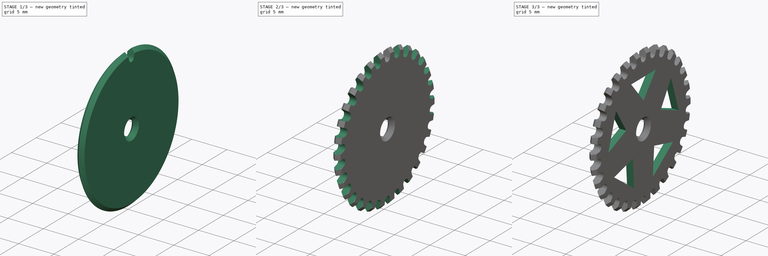
[diagram: build sequence overview — one tinted view per stage of 3, left to right]
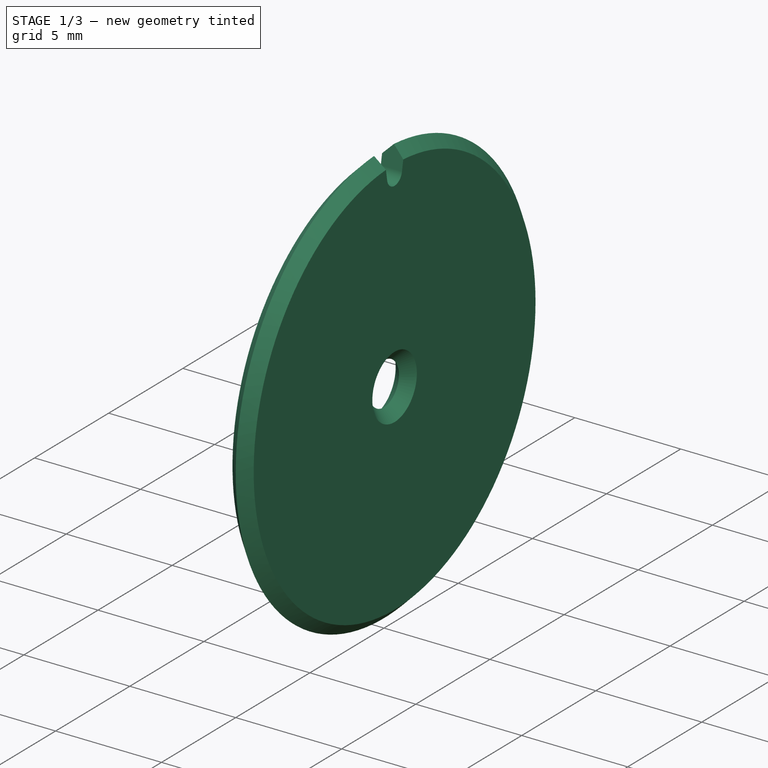
[diagram: stage 1 of 3 — iso view after this stage's code; geometry added in this stage tinted green]
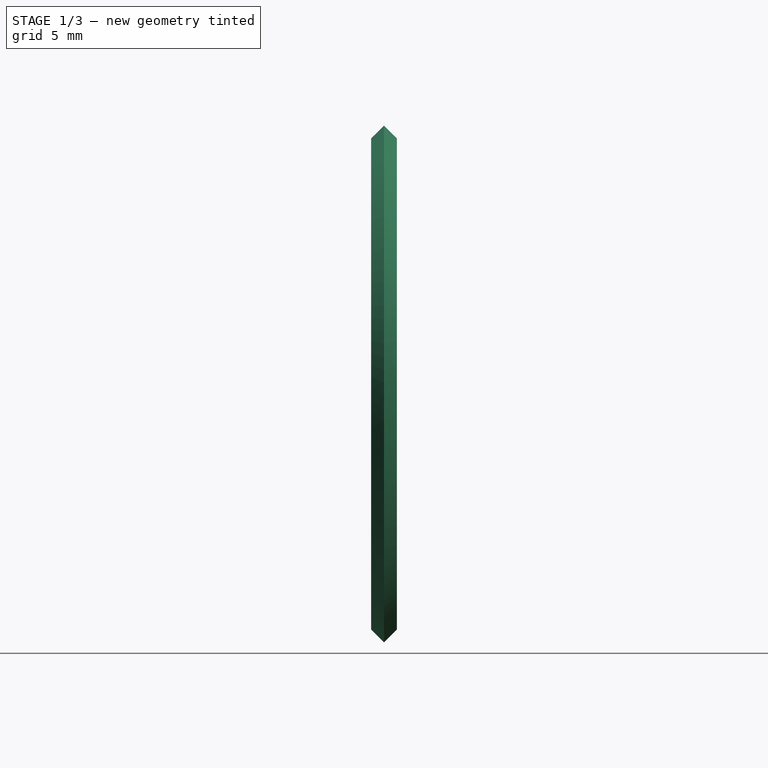
[diagram: stage 1 of 3 — front view after this stage's code; geometry added in this stage tinted green]
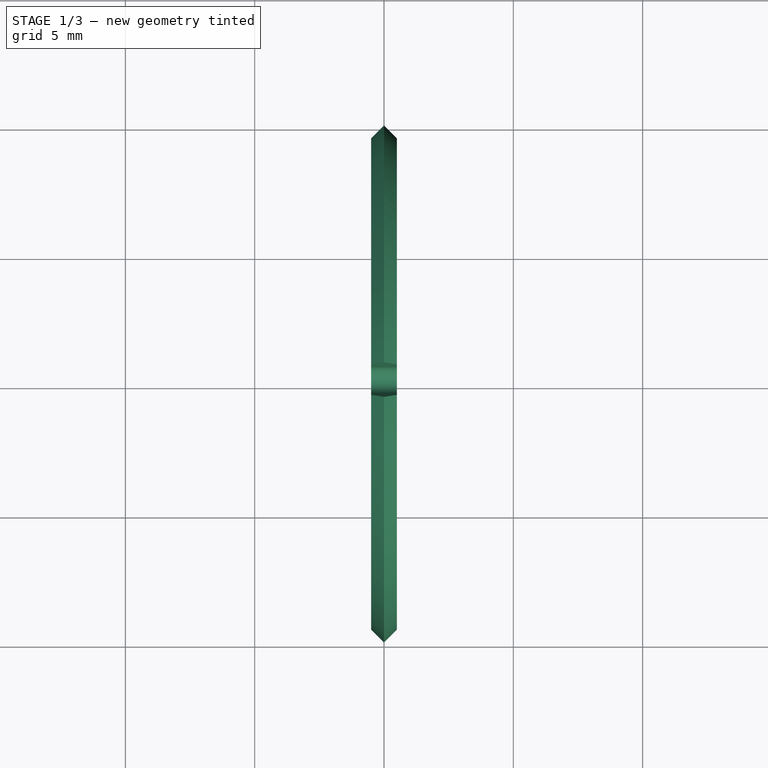
[diagram: stage 1 of 3 — top view after this stage's code; geometry added in this stage tinted green]
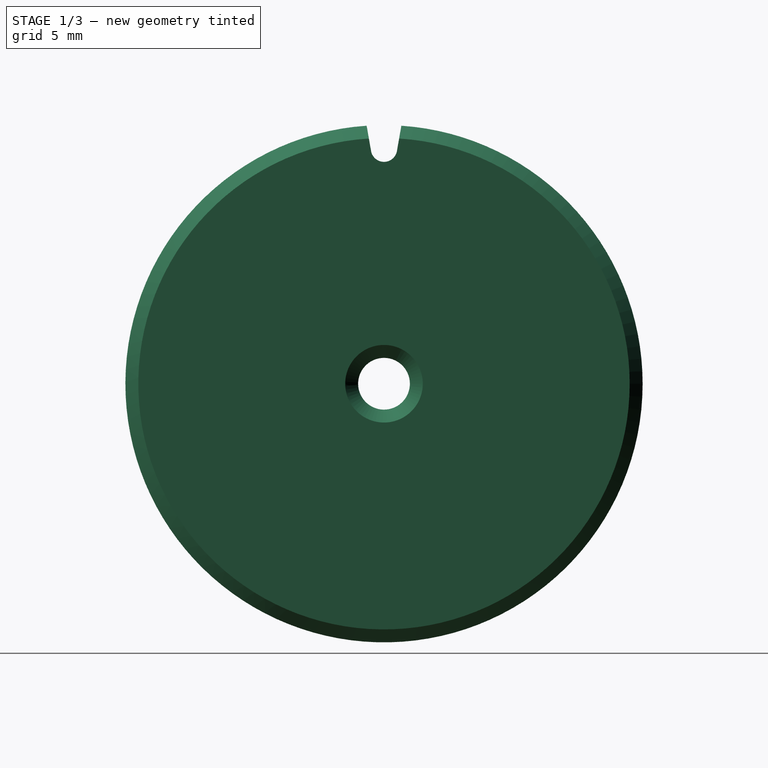
[diagram: stage 1 of 3 — right view after this stage's code; geometry added in this stage tinted green]
FCSTD DOCUMENT  (FreeCAD 0.15R4671 (Git))
Label: Gear
License: All rights reserved
LicenseURL: http://en.wikipedia.org/wiki/All_rights_reserved
objects: Sketcher::SketchObject×3, PartDesign::Pocket×2, PartDesign::PolarPattern×2, PartDesign::Revolution×1, Part::Feature×1
note: 12 computed .brp shape members not serialized (recipe doc carries the construction recipe); baked Part::Feature solids carry a one-line shape summary decoded from their .brp

FEATURE [Sketcher::SketchObject] Sketch
  sketch-geometry (6):
    g0: LineSegment StartX=-0.5 StartY=1.5 StartZ=0 EndX=-0.5 EndY=9.5 EndZ=0
    g1: LineSegment StartX=-0.5 StartY=9.5 StartZ=0 EndX=0 EndY=10 EndZ=0
    g2: LineSegment StartX=0 StartY=10 StartZ=0 EndX=0.5 EndY=9.5 EndZ=0
    g3: LineSegment StartX=0.5 StartY=9.5 StartZ=0 EndX=0.5 EndY=1.5 EndZ=0
    g4: LineSegment StartX=0.5 StartY=1.5 StartZ=0 EndX=0 EndY=1 EndZ=0
    g5: LineSegment StartX=0 StartY=1 StartZ=0 EndX=-0.5 EndY=1.5 EndZ=0
  constraints (17):
    c: Vertical(g0)
    c: Coincident(g0,g1)
    c: Coincident(g1,g2)
    c: Coincident(g2,g3)
    c: Vertical(g3)
    c: Coincident(g3,g4)
    c: Coincident(g4,g5)
    c: Coincident(g0,g5)
    c: Equal(g0,g3)
    c: Equal(g1,g2)
    c: Symmetric(g0,g2,g-2)
    c: DistanceX(g0,g3) = 1
    c: DistanceY(g1,g2) = -0.5
    c: DistanceY(g4,g3) = 0.5
    c: PointOnObject(g4,g-2)
    c: DistanceY(g-1,g4) = 1
    c: DistanceY(g-1,g1) = 10
FEATURE [PartDesign::Revolution] Revolution  label="Disk"
  Angle = 360
  Axis = (1,0,0)
  Base = (0,0,0)
  ReferenceAxis = -> Sketch [H_Axis]
  Sketch = -> Sketch
FEATURE [Sketcher::SketchObject] Sketch001  label="tooth"
  Placement = pos=(0.5,0,0) rot=(0.57735,0.57735,0.57735;2.0944rad)
  Support = -> Revolution [Face4]
  sketch-geometry (4):
    g0: ArcOfCircle CenterX=0 CenterY=9.08749 CenterZ=0 NormalX=0 NormalY=0 NormalZ=1 Radius=0.507597 StartAngle=3.31482 EndAngle=6.10996
    g1: LineSegment StartX=-0.675 StartY=10 StartZ=0 EndX=0.675 EndY=10 EndZ=0
    g2: LineSegment StartX=0.675 StartY=10 StartZ=0 EndX=0.5 EndY=9 EndZ=0
    g3: LineSegment StartX=-0.5 StartY=9 StartZ=0 EndX=-0.675 EndY=10 EndZ=0
  constraints (11):
    c: Coincident(g1,g2)
    c: Coincident(g3,g1)
    c: Coincident(g0,g2)
    c: Coincident(g0,g3)
    c: Tangent(g3,g0)
    c: Symmetric(g0,g0,g-2)
    c: Symmetric(g1,g1,g-2)
    c: DistanceX(g0,g0) = -1
    c: DistanceY(g2) = -1
    c: DistanceY(g-1,g0) = 9
    c: DistanceX(g1) = 1.35
FEATURE [PartDesign::Pocket] Pocket
  Length = 5
  Sketch = -> Sketch001
  Type = 1
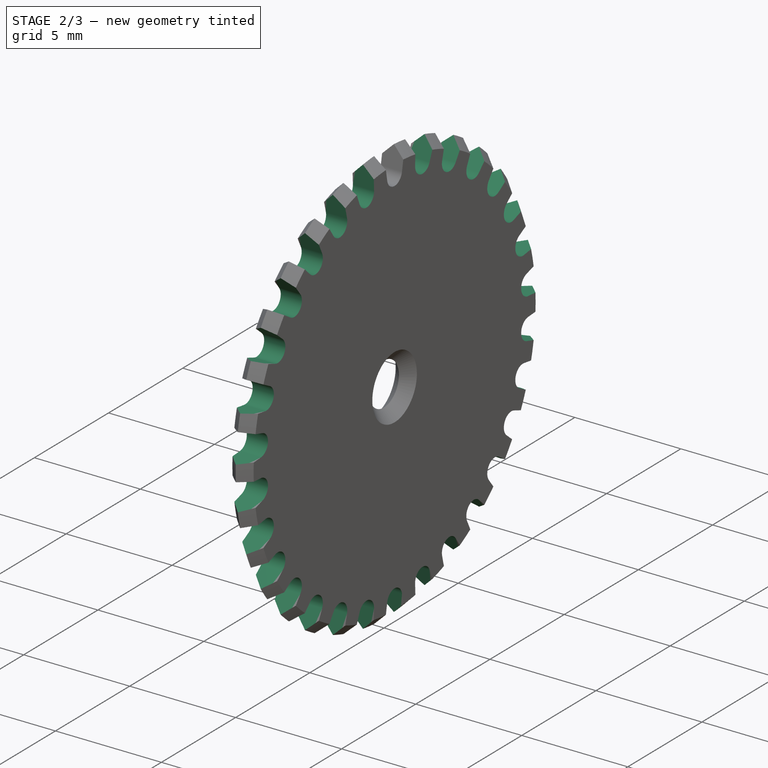
[diagram: stage 2 of 3 — iso view after this stage's code; geometry added in this stage tinted green]
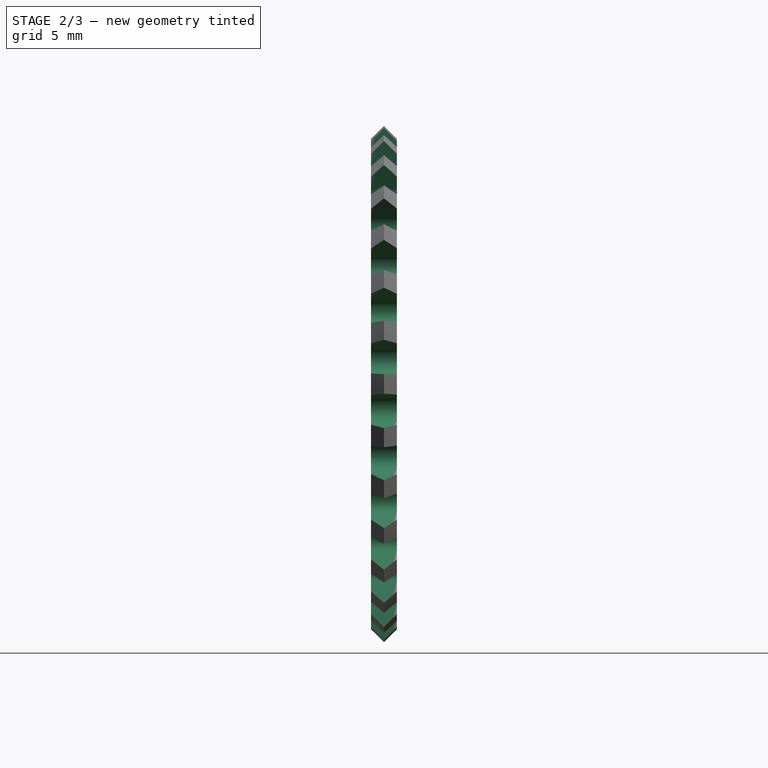
[diagram: stage 2 of 3 — front view after this stage's code; geometry added in this stage tinted green]
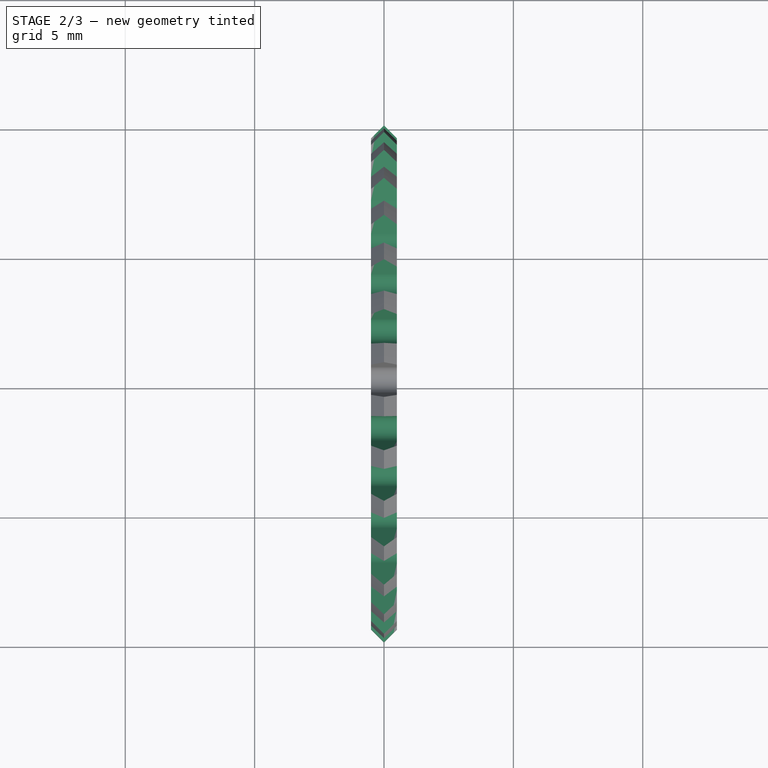
[diagram: stage 2 of 3 — top view after this stage's code; geometry added in this stage tinted green]
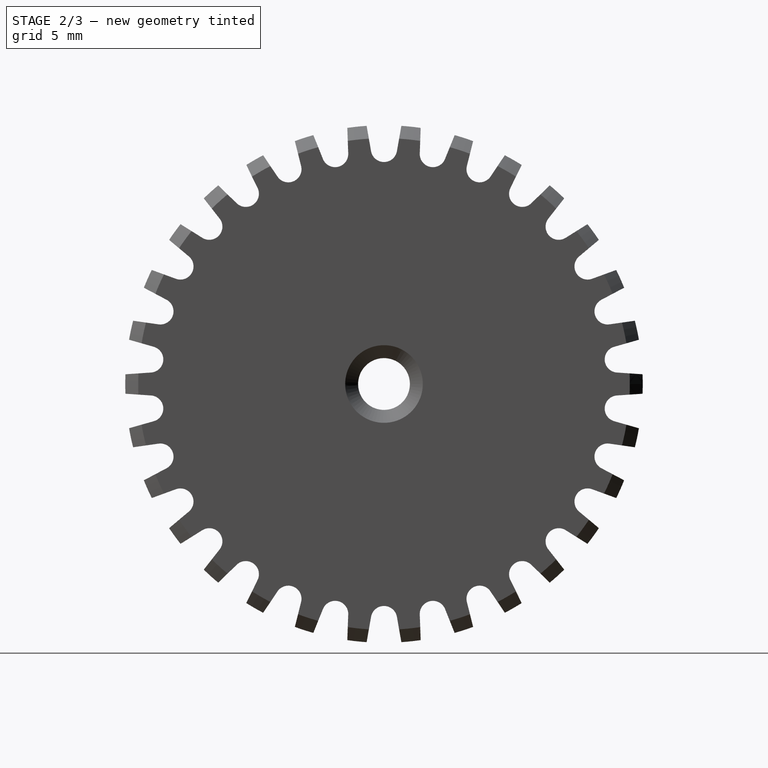
[diagram: stage 2 of 3 — right view after this stage's code; geometry added in this stage tinted green]
FEATURE [PartDesign::PolarPattern] PolarPattern
  Angle = 360
  Axis = -> Sketch001 [N_Axis]
  Occurrences = 30
  Originals = -> [Pocket]
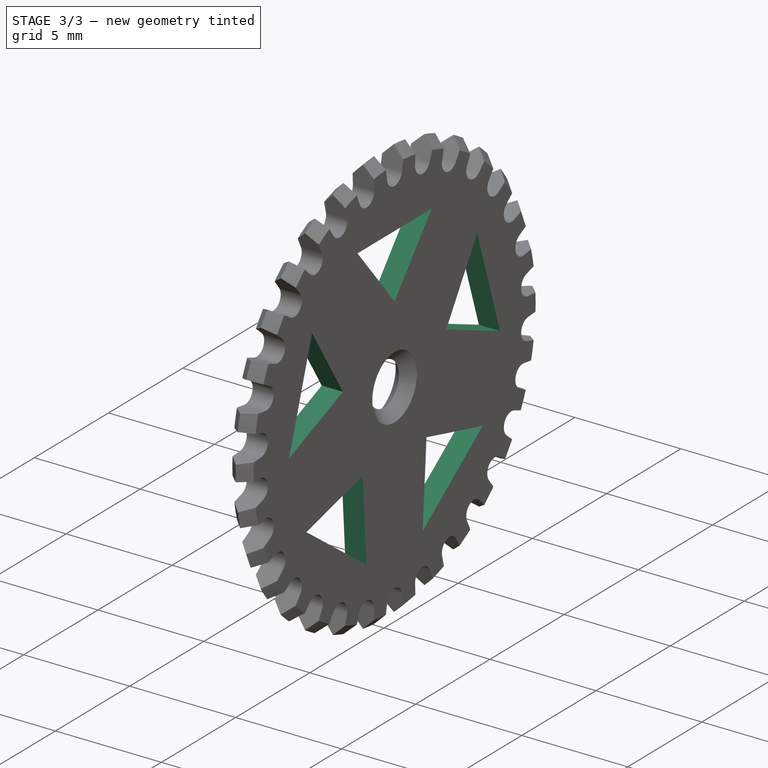
[diagram: stage 3 of 3 — iso view after this stage's code; geometry added in this stage tinted green]
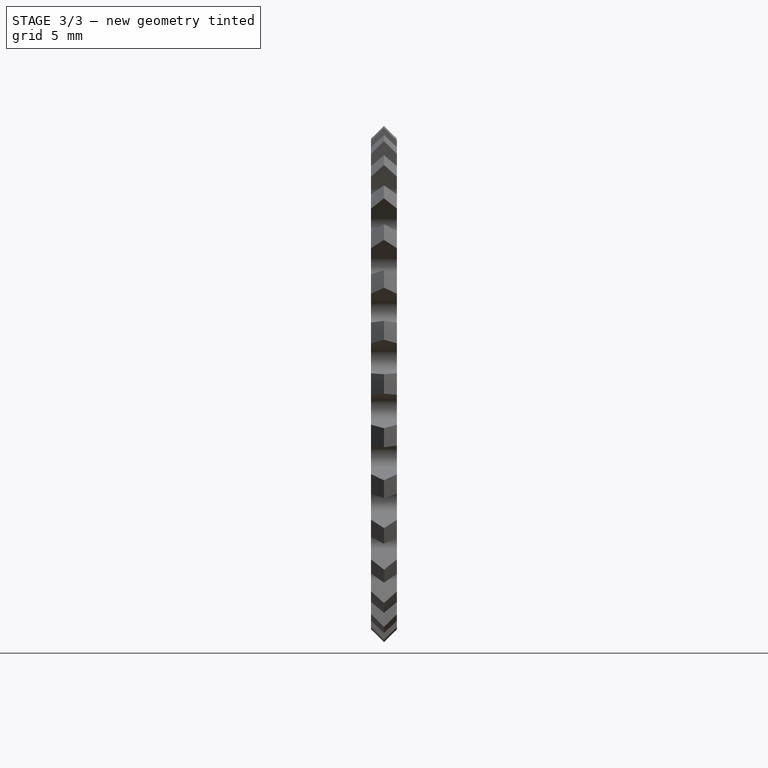
[diagram: stage 3 of 3 — front view after this stage's code; geometry added in this stage tinted green]
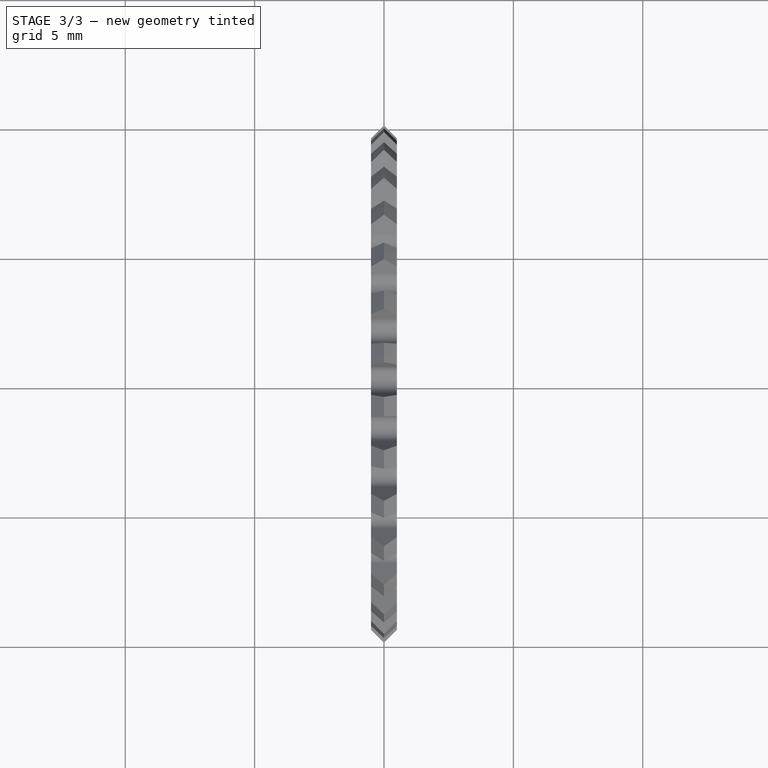
[diagram: stage 3 of 3 — top view after this stage's code; geometry added in this stage tinted green]
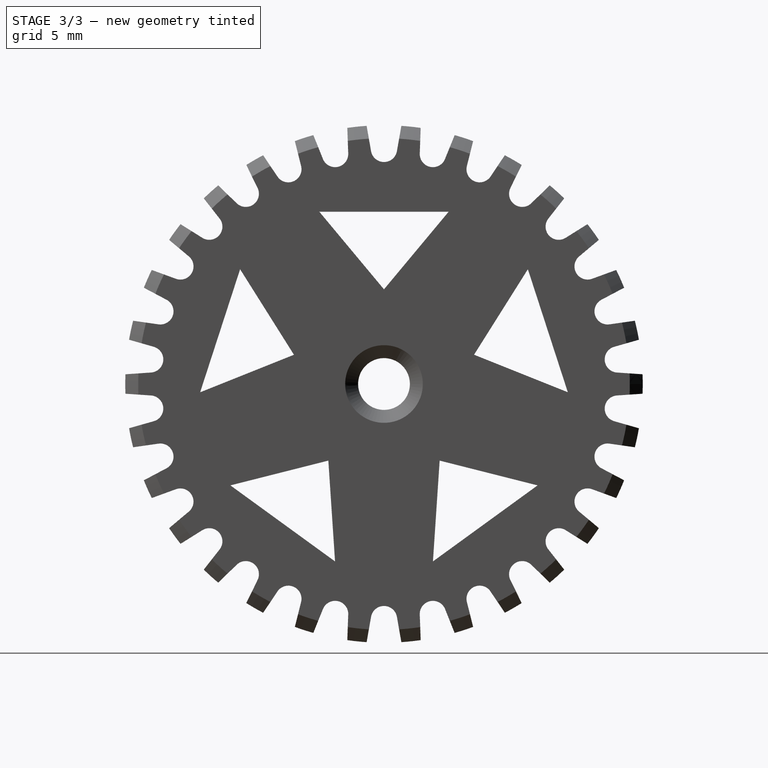
[diagram: stage 3 of 3 — right view after this stage's code; geometry added in this stage tinted green]
FEATURE [Sketcher::SketchObject] Sketch002
  Placement = pos=(0.5,0,0) rot=(0.57735,0.57735,0.57735;2.0944rad)
  Support = -> PolarPattern [Face125]
  sketch-geometry (3):
    g0: LineSegment StartX=-2.5 StartY=6.65951 StartZ=0 EndX=2.5 EndY=6.65951 EndZ=0
    g1: LineSegment StartX=2.5 StartY=6.65951 StartZ=0 EndX=0 EndY=3.65951 EndZ=0
    g2: LineSegment StartX=0 StartY=3.65951 StartZ=0 EndX=-2.5 EndY=6.65951 EndZ=0
  constraints (9):
    c: Horizontal(g0)
    c: PointOnObject(g1,g0)
    c: PointOnObject(g1,g-2)
    c: Coincident(g1,g2)
    c: Coincident(g2,g0)
    c: Coincident(g1,g0)
    c: DistanceX(g0) = 5
    c: DistanceY(g2) = 3
    c: Symmetric(g0,g0,g-2)
FEATURE [PartDesign::Pocket] Pocket001
  Length = 5
  Sketch = -> Sketch002
  Type = 1
FEATURE [PartDesign::PolarPattern] PolarPattern001
  Angle = 360
  Axis = -> Sketch002 [N_Axis]
  Occurrences = 5
  Originals = -> [Pocket001]
FEATURE [Part::Feature] PolarPattern001_solid  label="PolarPattern001 (Solid)"
  shape: bbox 1 x 20 x 19.96 mm, 171 faces (baked)
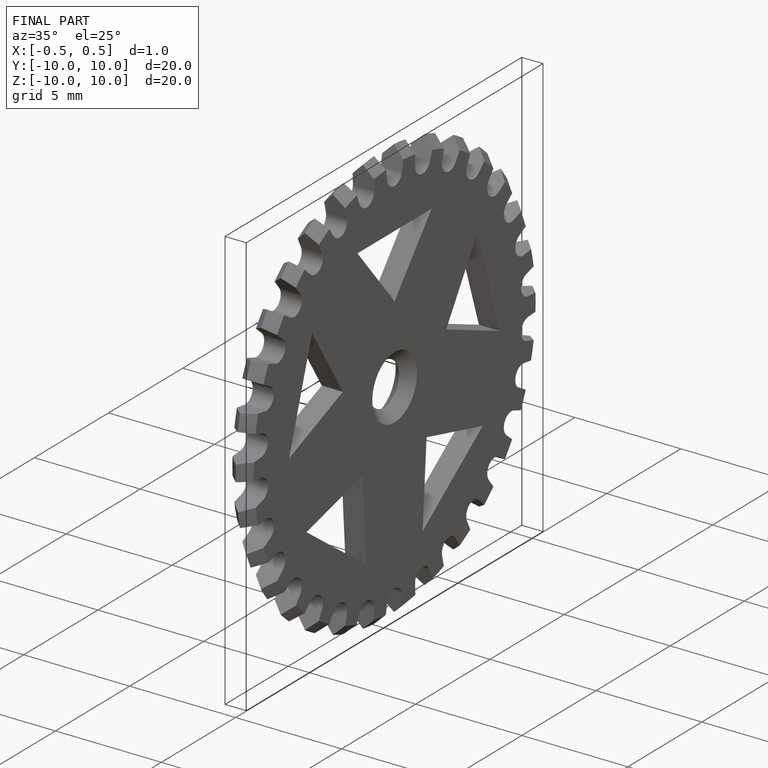
[diagram: finished part — iso view with bounding-box wireframe]
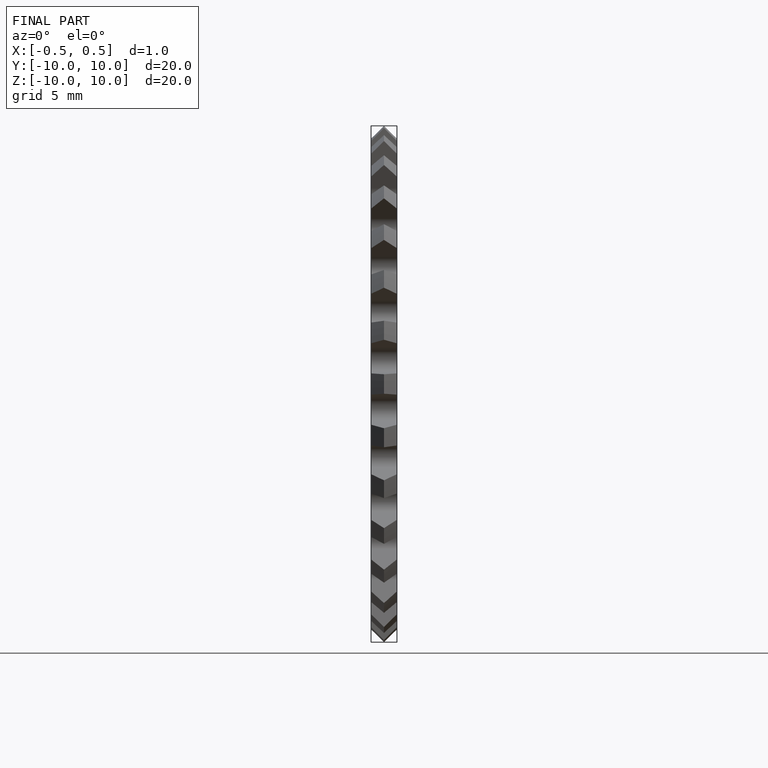
[diagram: finished part — front view with bounding-box wireframe]
